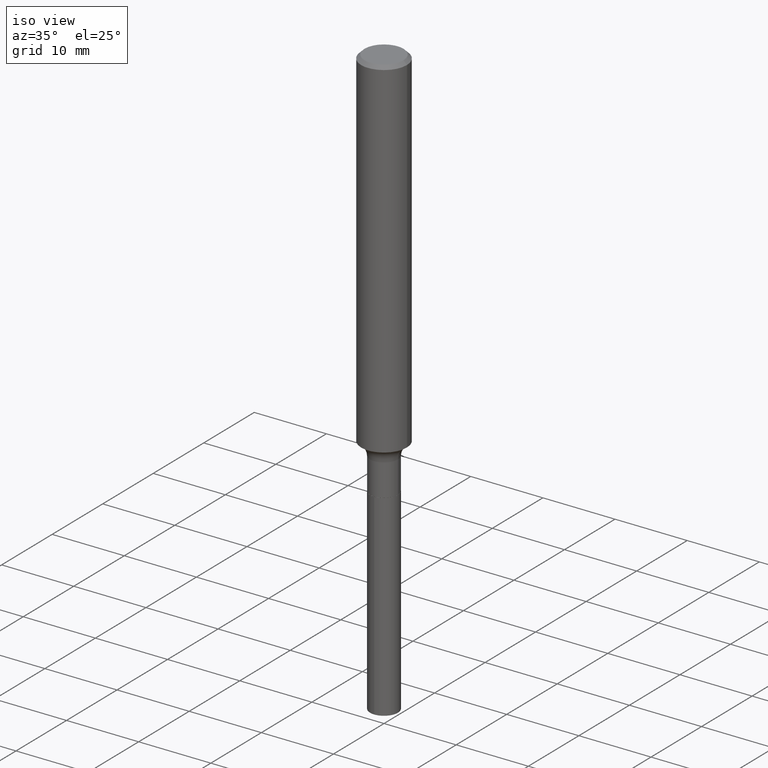
[diagram: clean part render]
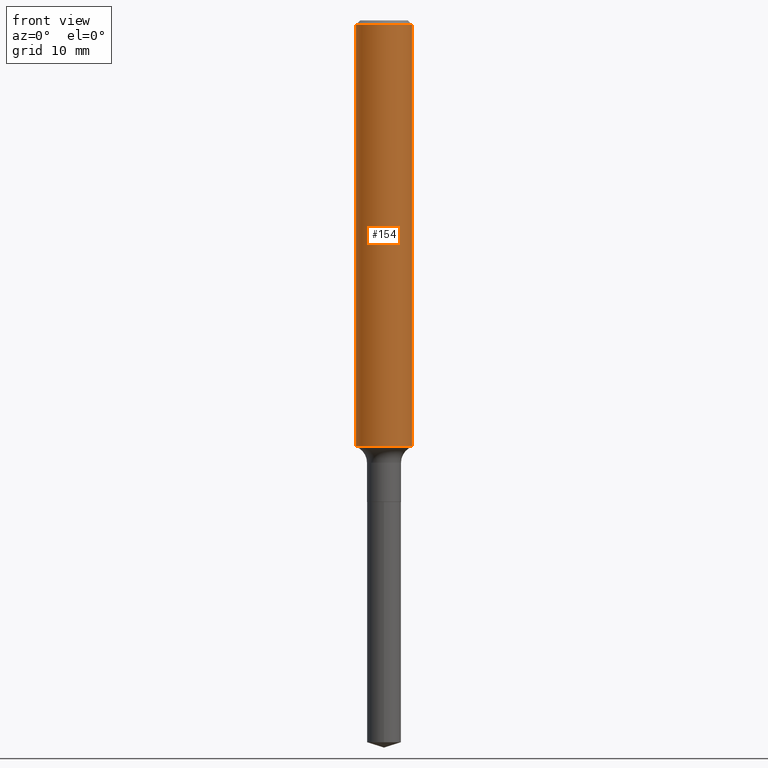
[diagram: tour spotlight — one face highlighted and labeled with its STEP entity id]
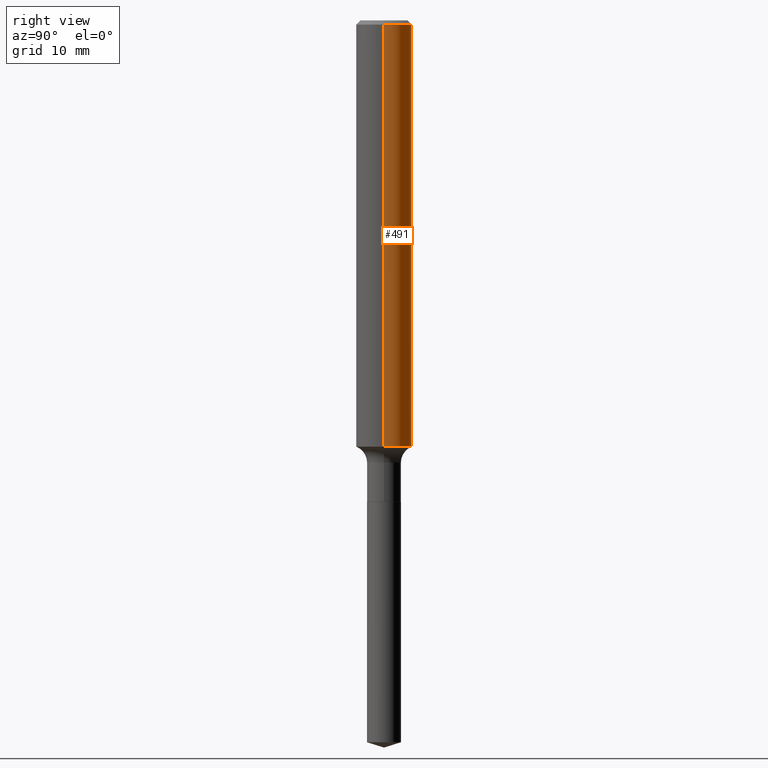
[diagram: tour spotlight — one face highlighted and labeled with its STEP entity id]
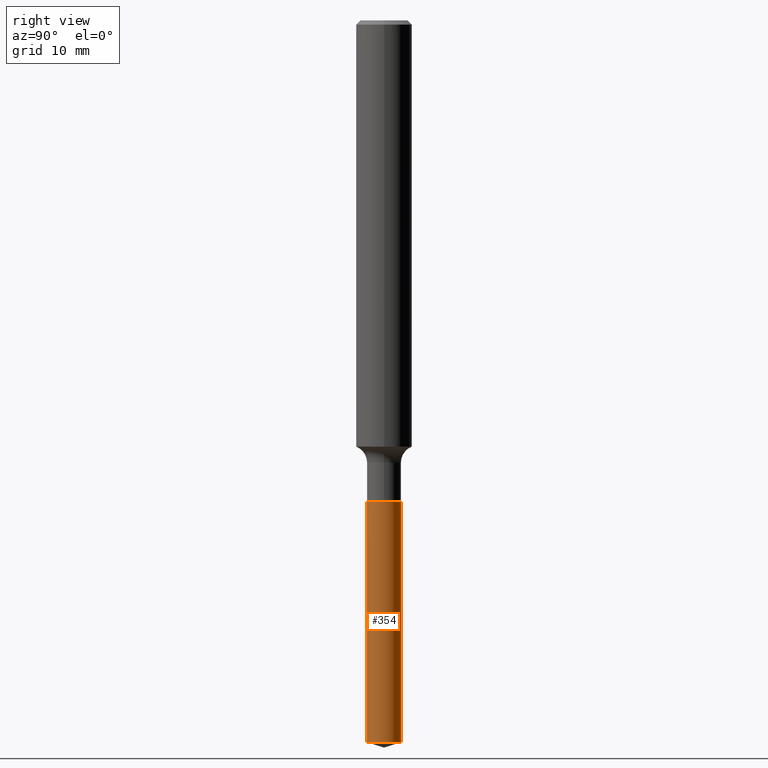
[diagram: tour spotlight — one face highlighted and labeled with its STEP entity id]
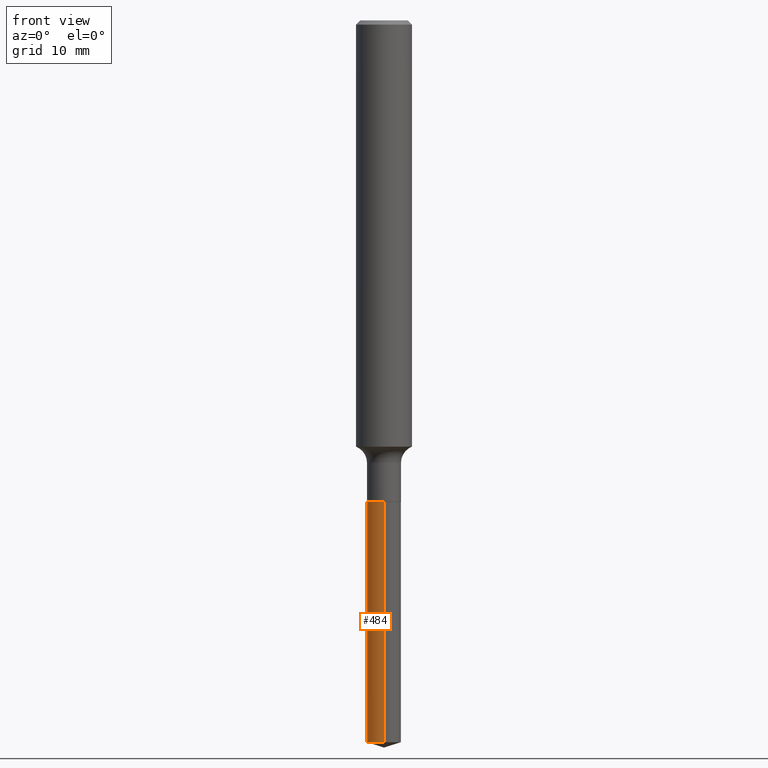
[diagram: tour spotlight — one face highlighted and labeled with its STEP entity id]
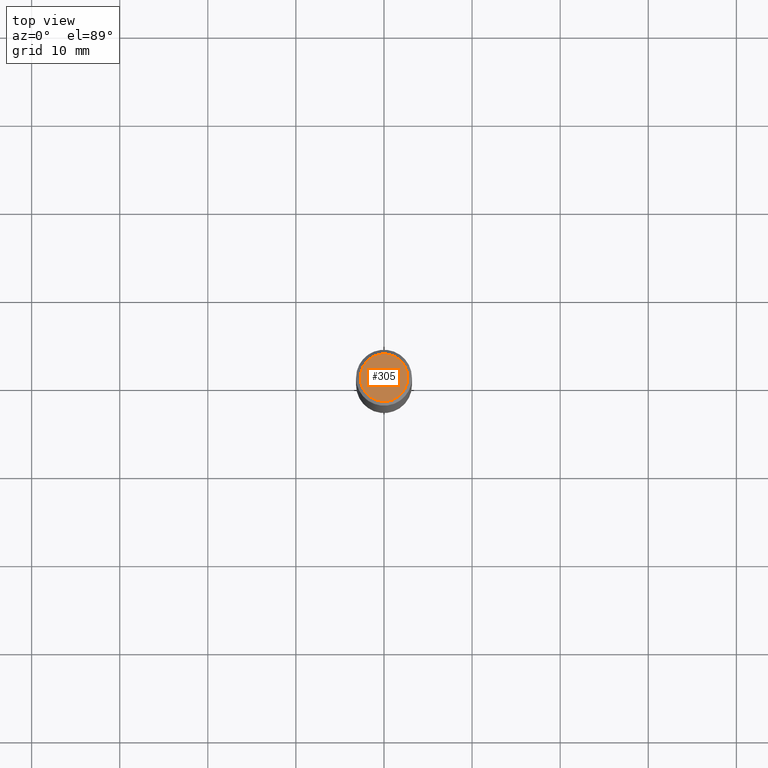
[diagram: tour spotlight — one face highlighted and labeled with its STEP entity id]
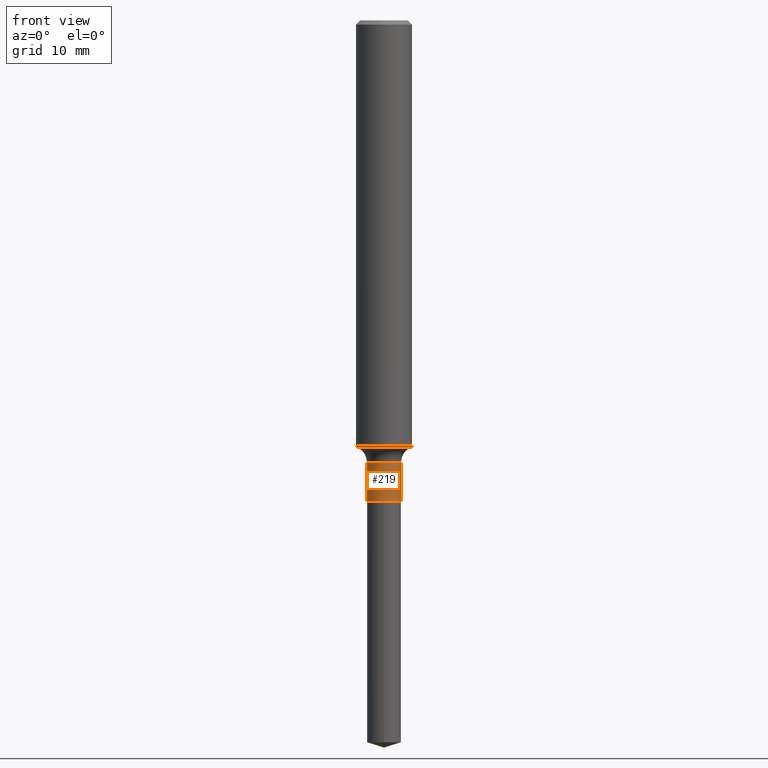
[diagram: tour spotlight — one face highlighted and labeled with its STEP entity id]
A machine part: a face-by-face anatomy tour. The part has 17 B-rep faces; the first image is the clean iso view, then the 6 largest visible faces are spotlighted one at a time (largest first), each with its STEP entity span.

Face 1 — front view, entity #154. In plain terms, the highlighted cylindrical surface (edge-blend (fillet) strip) has radius 3.175 mm, axis along (-0, 0, 1).
Definition (entity closure, byte-faithful):
#3 = CIRCLE ( 'NONE', #339, 0.1250000000000000000 ) ;
#5 = DIRECTION ( 'NONE',  ( 1.000000000000000000, -6.982962677686262766E-15, 0.000000000000000000 ) ) ;
#10 = CARTESIAN_POINT ( 'NONE',  ( 4.658108041399870066E-29, -6.650543756570650760E-15, -1.904791436970479923 ) ) ;
#41 = CARTESIAN_POINT ( 'NONE',  ( 0.1250000000000000000, -9.383356098140928781E-16, -0.01875000000000014155 ) ) ;
#61 = VECTOR ( 'NONE', #229, 39.37007874015748143 ) ;
#62 = ORIENTED_EDGE ( 'NONE', *, *, #147, .T. ) ;
#64 = CARTESIAN_POINT ( 'NONE',  ( -0.1250000000000000000, -2.469826096136851959E-15, -0.01875000000000014155 ) ) ;
#102 = ORIENTED_EDGE ( 'NONE', *, *, #443, .T. ) ;
#111 = EDGE_CURVE ( 'NONE', #129, #236, #3, .T. ) ;
#129 = VERTEX_POINT ( 'NONE', #64 ) ;
#131 = CARTESIAN_POINT ( 'NONE',  ( -0.1250000000000002498, -5.762365336870523950E-15, -1.904791436970479923 ) ) ;
#137 = DIRECTION ( 'NONE',  ( -2.445468806185136877E-29, 3.491481338843145188E-15, 1.000000000000000000 ) ) ;
#141 = DIRECTION ( 'NONE',  ( -2.445468806185136597E-29, 3.491481338843145583E-15, 1.000000000000000000 ) ) ;
#147 = EDGE_CURVE ( 'NONE', #249, #480, #245, .T. ) ;
#150 = CARTESIAN_POINT ( 'NONE',  ( -0.1250000000000001388, 8.881784197001262184E-16, -6.148668862818638533E-30 ) ) ;
#154 = ADVANCED_FACE ( 'NONE', ( #171 ), #430, .T. ) ;
#157 = DIRECTION ( 'NONE',  ( -2.445468806185136597E-29, 3.491481338843145583E-15, 1.000000000000000000 ) ) ;
#171 = FACE_OUTER_BOUND ( 'NONE', #367, .T. ) ;
#192 = DIRECTION ( 'NONE',  ( -2.445468806185136597E-29, 3.491481338843145583E-15, 1.000000000000000000 ) ) ;
#197 = VECTOR ( 'NONE', #137, 39.37007874015748143 ) ;
#211 = AXIS2_PLACEMENT_3D ( 'NONE', #10, #157, #5 ) ;
#229 = DIRECTION ( 'NONE',  ( -2.445468806185136877E-29, 3.491481338843145188E-15, 1.000000000000000000 ) ) ;
#235 = DIRECTION ( 'NONE',  ( 1.000000000000000000, -6.982962677686266711E-15, 4.876176775795935793E-29 ) ) ;
#236 = VERTEX_POINT ( 'NONE', #41 ) ;
#245 = CIRCLE ( 'NONE', #211, 0.1250000000000002776 ) ;
#249 = VERTEX_POINT ( 'NONE', #131 ) ;
#258 = CARTESIAN_POINT ( 'NONE',  ( 4.585254011597165626E-31, -6.546527510330947764E-17, -0.01875000000000014155 ) ) ;
#298 = LINE ( 'NONE', #371, #197 ) ;
#318 = CARTESIAN_POINT ( 'NONE',  ( 0.000000000000000000, 0.000000000000000000, 0.000000000000000000 ) ) ;
#329 = AXIS2_PLACEMENT_3D ( 'NONE', #318, #192, #235 ) ;
#339 = AXIS2_PLACEMENT_3D ( 'NONE', #258, #141, #365 ) ;
#344 = ORIENTED_EDGE ( 'NONE', *, *, #373, .F. ) ;
#365 = DIRECTION ( 'NONE',  ( 1.000000000000000000, -6.982962677686266711E-15, 0.000000000000000000 ) ) ;
#367 = EDGE_LOOP ( 'NONE', ( #344, #62, #102, #434 ) ) ;
#371 = CARTESIAN_POINT ( 'NONE',  ( 0.1250000000000001388, -8.728703347107843249E-16, 6.095220969744926748E-30 ) ) ;
#373 = EDGE_CURVE ( 'NONE', #249, #129, #486, .T. ) ;
#430 = CYLINDRICAL_SURFACE ( 'NONE', #329, 0.1250000000000001388 ) ;
#434 = ORIENTED_EDGE ( 'NONE', *, *, #111, .F. ) ;
#443 = EDGE_CURVE ( 'NONE', #480, #236, #298, .T. ) ;
#455 = CARTESIAN_POINT ( 'NONE',  ( 0.1250000000000002498, -7.523414091281434888E-15, -1.904791436970479923 ) ) ;
#480 = VERTEX_POINT ( 'NONE', #455 ) ;
#486 = LINE ( 'NONE', #150, #61 ) ;

Face 2 — right view, entity #491. In plain terms, the highlighted cylindrical surface (edge-blend (fillet) strip) has radius 3.175 mm, axis along (-0, 0, 1).
Definition (entity closure, byte-faithful):
#18 = AXIS2_PLACEMENT_3D ( 'NONE', #110, #335, #264 ) ;
#41 = CARTESIAN_POINT ( 'NONE',  ( 0.1250000000000000000, -9.383356098140928781E-16, -0.01875000000000014155 ) ) ;
#47 = CIRCLE ( 'NONE', #313, 0.1250000000000002776 ) ;
#61 = VECTOR ( 'NONE', #229, 39.37007874015748143 ) ;
#64 = CARTESIAN_POINT ( 'NONE',  ( -0.1250000000000000000, -2.469826096136851959E-15, -0.01875000000000014155 ) ) ;
#67 = ORIENTED_EDGE ( 'NONE', *, *, #373, .T. ) ;
#82 = AXIS2_PLACEMENT_3D ( 'NONE', #97, #172, #435 ) ;
#97 = CARTESIAN_POINT ( 'NONE',  ( 0.000000000000000000, 0.000000000000000000, 0.000000000000000000 ) ) ;
#110 = CARTESIAN_POINT ( 'NONE',  ( 4.585254011597165626E-31, -6.546527510330947764E-17, -0.01875000000000014155 ) ) ;
#115 = ORIENTED_EDGE ( 'NONE', *, *, #443, .F. ) ;
#129 = VERTEX_POINT ( 'NONE', #64 ) ;
#130 = CYLINDRICAL_SURFACE ( 'NONE', #82, 0.1250000000000001388 ) ;
#131 = CARTESIAN_POINT ( 'NONE',  ( -0.1250000000000002498, -5.762365336870523950E-15, -1.904791436970479923 ) ) ;
#137 = DIRECTION ( 'NONE',  ( -2.445468806185136877E-29, 3.491481338843145188E-15, 1.000000000000000000 ) ) ;
#150 = CARTESIAN_POINT ( 'NONE',  ( -0.1250000000000001388, 8.881784197001262184E-16, -6.148668862818638533E-30 ) ) ;
#161 = EDGE_LOOP ( 'NONE', ( #477, #67, #176, #115 ) ) ;
#172 = DIRECTION ( 'NONE',  ( -2.445468806185136597E-29, 3.491481338843145583E-15, 1.000000000000000000 ) ) ;
#176 = ORIENTED_EDGE ( 'NONE', *, *, #317, .F. ) ;
#197 = VECTOR ( 'NONE', #137, 39.37007874015748143 ) ;
#229 = DIRECTION ( 'NONE',  ( -2.445468806185136877E-29, 3.491481338843145188E-15, 1.000000000000000000 ) ) ;
#236 = VERTEX_POINT ( 'NONE', #41 ) ;
#242 = DIRECTION ( 'NONE',  ( -2.445468806185136597E-29, 3.491481338843145583E-15, 1.000000000000000000 ) ) ;
#244 = CIRCLE ( 'NONE', #18, 0.1250000000000000000 ) ;
#249 = VERTEX_POINT ( 'NONE', #131 ) ;
#250 = EDGE_CURVE ( 'NONE', #480, #249, #47, .T. ) ;
#264 = DIRECTION ( 'NONE',  ( 1.000000000000000000, -6.982962677686266711E-15, 0.000000000000000000 ) ) ;
#284 = CARTESIAN_POINT ( 'NONE',  ( 4.658108041399870066E-29, -6.650543756570650760E-15, -1.904791436970479923 ) ) ;
#298 = LINE ( 'NONE', #371, #197 ) ;
#312 = FACE_OUTER_BOUND ( 'NONE', #161, .T. ) ;
#313 = AXIS2_PLACEMENT_3D ( 'NONE', #284, #242, #324 ) ;
#317 = EDGE_CURVE ( 'NONE', #236, #129, #244, .T. ) ;
#324 = DIRECTION ( 'NONE',  ( 1.000000000000000000, -6.982962677686262766E-15, 0.000000000000000000 ) ) ;
#335 = DIRECTION ( 'NONE',  ( -2.445468806185136597E-29, 3.491481338843145583E-15, 1.000000000000000000 ) ) ;
#371 = CARTESIAN_POINT ( 'NONE',  ( 0.1250000000000001388, -8.728703347107843249E-16, 6.095220969744926748E-30 ) ) ;
#373 = EDGE_CURVE ( 'NONE', #249, #129, #486, .T. ) ;
#435 = DIRECTION ( 'NONE',  ( 1.000000000000000000, -6.982962677686266711E-15, 4.876176775795935793E-29 ) ) ;
#443 = EDGE_CURVE ( 'NONE', #480, #236, #298, .T. ) ;
#455 = CARTESIAN_POINT ( 'NONE',  ( 0.1250000000000002498, -7.523414091281434888E-15, -1.904791436970479923 ) ) ;
#477 = ORIENTED_EDGE ( 'NONE', *, *, #250, .T. ) ;
#480 = VERTEX_POINT ( 'NONE', #455 ) ;
#486 = LINE ( 'NONE', #150, #61 ) ;
#491 = ADVANCED_FACE ( 'NONE', ( #312 ), #130, .T. ) ;

Face 3 — right view, entity #354. In plain terms, the highlighted cylindrical surface (edge-blend (fillet) strip) has radius 1.9304 mm, axis along (-0, 0, 1).
Definition (entity closure, byte-faithful):
#15 = DIRECTION ( 'NONE',  ( -6.982962677686265922E-15, -1.000000000000000000, 0.000000000000000000 ) ) ;
#35 = CARTESIAN_POINT ( 'NONE',  ( 5.262648870910414216E-29, -7.513667841190447972E-15, -2.151999999999999691 ) ) ;
#36 = AXIS2_PLACEMENT_3D ( 'NONE', #35, #266, #182 ) ;
#37 = EDGE_CURVE ( 'NONE', #478, #126, #112, .T. ) ;
#72 = CARTESIAN_POINT ( 'NONE',  ( -5.307051635040773287E-16, -0.07600000000001126688, -3.226037292045197180 ) ) ;
#94 = VERTEX_POINT ( 'NONE', #72 ) ;
#103 = CARTESIAN_POINT ( 'NONE',  ( 5.400124791777550139E-16, 0.07599999999998874323, -3.226037292045197180 ) ) ;
#112 = CIRCLE ( 'NONE', #36, 0.07599999999999999811 ) ;
#119 = DIRECTION ( 'NONE',  ( -6.982962677686265922E-15, -1.000000000000000000, 3.594536833768767206E-15 ) ) ;
#125 = EDGE_CURVE ( 'NONE', #94, #468, #316, .T. ) ;
#126 = VERTEX_POINT ( 'NONE', #290 ) ;
#165 = EDGE_LOOP ( 'NONE', ( #300, #223, #431, #389 ) ) ;
#182 = DIRECTION ( 'NONE',  ( -6.982962677686265922E-15, -1.000000000000000000, 3.594536833768767206E-15 ) ) ;
#188 = CYLINDRICAL_SURFACE ( 'NONE', #457, 0.07599999999999999811 ) ;
#223 = ORIENTED_EDGE ( 'NONE', *, *, #409, .T. ) ;
#266 = DIRECTION ( 'NONE',  ( -2.445485975129154675E-29, 3.491456751938116004E-15, 1.000000000000000000 ) ) ;
#290 = CARTESIAN_POINT ( 'NONE',  ( 5.400124791777551125E-16, 0.07599999999999249023, -2.152000000000000135 ) ) ;
#291 = DIRECTION ( 'NONE',  ( -2.445485975129154675E-29, 3.491456751938116004E-15, 1.000000000000000000 ) ) ;
#293 = CARTESIAN_POINT ( 'NONE',  ( 7.889192005372638676E-29, -1.126362259633498391E-14, -3.226037292045197180 ) ) ;
#294 = CARTESIAN_POINT ( 'NONE',  ( -5.307051635041035583E-16, -0.07600000000000750600, -2.151999999999999691 ) ) ;
#300 = ORIENTED_EDGE ( 'NONE', *, *, #125, .T. ) ;
#309 = VECTOR ( 'NONE', #291, 39.37007874015748143 ) ;
#311 = LINE ( 'NONE', #454, #348 ) ;
#316 = CIRCLE ( 'NONE', #414, 0.07599999999999999811 ) ;
#348 = VECTOR ( 'NONE', #381, 39.37007874015748143 ) ;
#354 = ADVANCED_FACE ( 'NONE', ( #448 ), #188, .T. ) ;
#381 = DIRECTION ( 'NONE',  ( -2.445485975129154675E-29, 3.491456751938116004E-15, 1.000000000000000000 ) ) ;
#384 = CARTESIAN_POINT ( 'NONE',  ( 5.262648870910414216E-29, -7.513667841190447972E-15, -2.151999999999999691 ) ) ;
#389 = ORIENTED_EDGE ( 'NONE', *, *, #417, .F. ) ;
#402 = DIRECTION ( 'NONE',  ( -2.445485975129154675E-29, 3.491456751938116004E-15, 1.000000000000000000 ) ) ;
#409 = EDGE_CURVE ( 'NONE', #468, #126, #311, .T. ) ;
#414 = AXIS2_PLACEMENT_3D ( 'NONE', #293, #402, #15 ) ;
#417 = EDGE_CURVE ( 'NONE', #94, #478, #483, .T. ) ;
#431 = ORIENTED_EDGE ( 'NONE', *, *, #37, .F. ) ;
#448 = FACE_OUTER_BOUND ( 'NONE', #165, .T. ) ;
#453 = DIRECTION ( 'NONE',  ( -2.445485975129154675E-29, 3.491456751938116004E-15, 1.000000000000000000 ) ) ;
#454 = CARTESIAN_POINT ( 'NONE',  ( 5.400124791777286857E-16, 0.07599999999999249023, -2.152000000000000135 ) ) ;
#457 = AXIS2_PLACEMENT_3D ( 'NONE', #384, #453, #119 ) ;
#462 = CARTESIAN_POINT ( 'NONE',  ( -5.307051635041035583E-16, -0.07600000000000750600, -2.151999999999999691 ) ) ;
#468 = VERTEX_POINT ( 'NONE', #103 ) ;
#478 = VERTEX_POINT ( 'NONE', #294 ) ;
#483 = LINE ( 'NONE', #462, #309 ) ;

Face 4 — front view, entity #484. In plain terms, the highlighted cylindrical surface (edge-blend (fillet) strip) has radius 1.9304 mm, axis along (-0, 0, 1).
Definition (entity closure, byte-faithful):
#52 = CARTESIAN_POINT ( 'NONE',  ( 5.262648870910414216E-29, -7.513667841190447972E-15, -2.151999999999999691 ) ) ;
#58 = DIRECTION ( 'NONE',  ( -6.982962677686265922E-15, -1.000000000000000000, 0.000000000000000000 ) ) ;
#71 = CIRCLE ( 'NONE', #170, 0.07599999999999999811 ) ;
#72 = CARTESIAN_POINT ( 'NONE',  ( -5.307051635040773287E-16, -0.07600000000001126688, -3.226037292045197180 ) ) ;
#94 = VERTEX_POINT ( 'NONE', #72 ) ;
#95 = FACE_OUTER_BOUND ( 'NONE', #359, .T. ) ;
#96 = ORIENTED_EDGE ( 'NONE', *, *, #417, .T. ) ;
#103 = CARTESIAN_POINT ( 'NONE',  ( 5.400124791777550139E-16, 0.07599999999998874323, -3.226037292045197180 ) ) ;
#126 = VERTEX_POINT ( 'NONE', #290 ) ;
#163 = DIRECTION ( 'NONE',  ( -2.445485975129154675E-29, 3.491456751938116004E-15, 1.000000000000000000 ) ) ;
#168 = CIRCLE ( 'NONE', #346, 0.07599999999999999811 ) ;
#170 = AXIS2_PLACEMENT_3D ( 'NONE', #357, #426, #467 ) ;
#207 = ORIENTED_EDGE ( 'NONE', *, *, #409, .F. ) ;
#231 = AXIS2_PLACEMENT_3D ( 'NONE', #52, #163, #257 ) ;
#241 = EDGE_CURVE ( 'NONE', #126, #478, #71, .T. ) ;
#257 = DIRECTION ( 'NONE',  ( -6.982962677686265922E-15, -1.000000000000000000, 3.594536833768767206E-15 ) ) ;
#273 = EDGE_CURVE ( 'NONE', #468, #94, #168, .T. ) ;
#282 = ORIENTED_EDGE ( 'NONE', *, *, #273, .T. ) ;
#290 = CARTESIAN_POINT ( 'NONE',  ( 5.400124791777551125E-16, 0.07599999999999249023, -2.152000000000000135 ) ) ;
#291 = DIRECTION ( 'NONE',  ( -2.445485975129154675E-29, 3.491456751938116004E-15, 1.000000000000000000 ) ) ;
#294 = CARTESIAN_POINT ( 'NONE',  ( -5.307051635041035583E-16, -0.07600000000000750600, -2.151999999999999691 ) ) ;
#309 = VECTOR ( 'NONE', #291, 39.37007874015748143 ) ;
#311 = LINE ( 'NONE', #454, #348 ) ;
#315 = ORIENTED_EDGE ( 'NONE', *, *, #241, .F. ) ;
#322 = CYLINDRICAL_SURFACE ( 'NONE', #231, 0.07599999999999999811 ) ;
#346 = AXIS2_PLACEMENT_3D ( 'NONE', #398, #363, #58 ) ;
#348 = VECTOR ( 'NONE', #381, 39.37007874015748143 ) ;
#357 = CARTESIAN_POINT ( 'NONE',  ( 5.262648870910414216E-29, -7.513667841190447972E-15, -2.151999999999999691 ) ) ;
#359 = EDGE_LOOP ( 'NONE', ( #207, #282, #96, #315 ) ) ;
#363 = DIRECTION ( 'NONE',  ( -2.445485975129154675E-29, 3.491456751938116004E-15, 1.000000000000000000 ) ) ;
#381 = DIRECTION ( 'NONE',  ( -2.445485975129154675E-29, 3.491456751938116004E-15, 1.000000000000000000 ) ) ;
#398 = CARTESIAN_POINT ( 'NONE',  ( 7.889192005372638676E-29, -1.126362259633498391E-14, -3.226037292045197180 ) ) ;
#409 = EDGE_CURVE ( 'NONE', #468, #126, #311, .T. ) ;
#417 = EDGE_CURVE ( 'NONE', #94, #478, #483, .T. ) ;
#426 = DIRECTION ( 'NONE',  ( -2.445485975129154675E-29, 3.491456751938116004E-15, 1.000000000000000000 ) ) ;
#454 = CARTESIAN_POINT ( 'NONE',  ( 5.400124791777286857E-16, 0.07599999999999249023, -2.152000000000000135 ) ) ;
#462 = CARTESIAN_POINT ( 'NONE',  ( -5.307051635041035583E-16, -0.07600000000000750600, -2.151999999999999691 ) ) ;
#467 = DIRECTION ( 'NONE',  ( -6.982962677686265922E-15, -1.000000000000000000, 3.594536833768767206E-15 ) ) ;
#468 = VERTEX_POINT ( 'NONE', #103 ) ;
#478 = VERTEX_POINT ( 'NONE', #294 ) ;
#483 = LINE ( 'NONE', #462, #309 ) ;
#484 = ADVANCED_FACE ( 'NONE', ( #95 ), #322, .T. ) ;

Face 5 — top view, entity #305. In plain terms, the highlighted planar face has unit normal (0, -0, -1).
Definition (entity closure, byte-faithful):
#79 = AXIS2_PLACEMENT_3D ( 'NONE', #88, #86, #358 ) ;
#83 = CIRCLE ( 'NONE', #263, 0.1062499999999999972 ) ;
#84 = VERTEX_POINT ( 'NONE', #342 ) ;
#86 = DIRECTION ( 'NONE',  ( -2.445468806185136597E-29, 3.491481338843145583E-15, 1.000000000000000000 ) ) ;
#88 = CARTESIAN_POINT ( 'NONE',  ( -1.591006383764330940E-46, 2.271535455632768948E-32, 6.505936120470318766E-18 ) ) ;
#118 = CIRCLE ( 'NONE', #79, 0.1062499999999999972 ) ;
#139 = VERTEX_POINT ( 'NONE', #214 ) ;
#175 = CARTESIAN_POINT ( 'NONE',  ( -1.591006383764330940E-46, 2.271535455632768948E-32, 6.505936120470318766E-18 ) ) ;
#184 = AXIS2_PLACEMENT_3D ( 'NONE', #447, #444, #260 ) ;
#193 = ORIENTED_EDGE ( 'NONE', *, *, #308, .T. ) ;
#210 = EDGE_CURVE ( 'NONE', #139, #84, #118, .T. ) ;
#214 = CARTESIAN_POINT ( 'NONE',  ( 0.1062499999999999972, -8.259777185439879685E-16, 6.505936120475800733E-18 ) ) ;
#217 = FACE_OUTER_BOUND ( 'NONE', #239, .T. ) ;
#239 = EDGE_LOOP ( 'NONE', ( #193, #460 ) ) ;
#260 = DIRECTION ( 'NONE',  ( -1.000000000000000000, 6.982962677686265922E-15, -4.876176775795935793E-29 ) ) ;
#263 = AXIS2_PLACEMENT_3D ( 'NONE', #175, #377, #340 ) ;
#305 = ADVANCED_FACE ( 'NONE', ( #217 ), #343, .F. ) ;
#308 = EDGE_CURVE ( 'NONE', #84, #139, #83, .T. ) ;
#340 = DIRECTION ( 'NONE',  ( 1.000000000000000000, -6.982962677686266711E-15, 4.875930095424100059E-29 ) ) ;
#342 = CARTESIAN_POINT ( 'NONE',  ( -0.1062499999999999972, 7.746724220558198188E-16, 6.505936120465015526E-18 ) ) ;
#343 = PLANE ( 'NONE',  #184 ) ;
#358 = DIRECTION ( 'NONE',  ( 1.000000000000000000, -6.982962677686266711E-15, 4.875930095424100059E-29 ) ) ;
#377 = DIRECTION ( 'NONE',  ( -2.445468806185136597E-29, 3.491481338843145583E-15, 1.000000000000000000 ) ) ;
#444 = DIRECTION ( 'NONE',  ( 2.438088387897960049E-29, -3.491481338843145188E-15, -1.000000000000000000 ) ) ;
#447 = CARTESIAN_POINT ( 'NONE',  ( -7.955031918821654702E-47, 1.135767727816384474E-32, 3.252968060235159383E-18 ) ) ;
#460 = ORIENTED_EDGE ( 'NONE', *, *, #210, .T. ) ;

Face 6 — front view, entity #219. In plain terms, the highlighted cylindrical surface (edge-blend (fillet) strip) has radius 1.9304 mm, axis along (-0, 0, 1).
Definition (entity closure, byte-faithful):
#7 = CARTESIAN_POINT ( 'NONE',  ( -0.07600000000000001199, -6.667627022663171914E-15, -2.151499999999999968 ) ) ;
#13 = EDGE_LOOP ( 'NONE', ( #288, #345, #280, #70 ) ) ;
#17 = EDGE_CURVE ( 'NONE', #256, #436, #449, .T. ) ;
#22 = EDGE_CURVE ( 'NONE', #256, #107, #464, .T. ) ;
#29 = DIRECTION ( 'NONE',  ( -2.445468806185136597E-29, 3.491481338843145583E-15, 1.000000000000000000 ) ) ;
#33 = EDGE_CURVE ( 'NONE', #436, #406, #439, .T. ) ;
#44 = CARTESIAN_POINT ( 'NONE',  ( 0.000000000000000000, 0.000000000000000000, 0.000000000000000000 ) ) ;
#48 = VECTOR ( 'NONE', #459, 39.37007874015748143 ) ;
#70 = ORIENTED_EDGE ( 'NONE', *, *, #33, .F. ) ;
#76 = CARTESIAN_POINT ( 'NONE',  ( -0.07599999999999998423, 5.400124791776760292E-16, -3.738390668593727996E-30 ) ) ;
#107 = VERTEX_POINT ( 'NONE', #299 ) ;
#123 = CYLINDRICAL_SURFACE ( 'NONE', #178, 0.07599999999999998423 ) ;
#136 = EDGE_CURVE ( 'NONE', #107, #406, #362, .T. ) ;
#153 = CARTESIAN_POINT ( 'NONE',  ( 0.07599999999999998423, -7.434062066664824253E-15, -1.977200000000000069 ) ) ;
#178 = AXIS2_PLACEMENT_3D ( 'NONE', #44, #330, #396 ) ;
#183 = DIRECTION ( 'NONE',  ( -2.445468806185136597E-29, 3.491481338843145583E-15, 1.000000000000000000 ) ) ;
#185 = AXIS2_PLACEMENT_3D ( 'NONE', #411, #183, #412 ) ;
#190 = AXIS2_PLACEMENT_3D ( 'NONE', #226, #29, #382 ) ;
#219 = ADVANCED_FACE ( 'NONE', ( #366 ), #123, .T. ) ;
#226 = CARTESIAN_POINT ( 'NONE',  ( 4.835180923589252545E-29, -6.903356903160668236E-15, -1.977200000000000069 ) ) ;
#256 = VERTEX_POINT ( 'NONE', #7 ) ;
#267 = DIRECTION ( 'NONE',  ( -2.445468806185136877E-29, 3.491481338843145188E-15, 1.000000000000000000 ) ) ;
#280 = ORIENTED_EDGE ( 'NONE', *, *, #136, .T. ) ;
#288 = ORIENTED_EDGE ( 'NONE', *, *, #17, .F. ) ;
#299 = CARTESIAN_POINT ( 'NONE',  ( 0.07599999999999999811, -8.042627264025184852E-15, -2.151499999999999968 ) ) ;
#304 = VECTOR ( 'NONE', #267, 39.37007874015748143 ) ;
#330 = DIRECTION ( 'NONE',  ( -2.445468806185136597E-29, 3.491481338843145583E-15, 1.000000000000000000 ) ) ;
#345 = ORIENTED_EDGE ( 'NONE', *, *, #22, .T. ) ;
#362 = LINE ( 'NONE', #424, #48 ) ;
#366 = FACE_OUTER_BOUND ( 'NONE', #13, .T. ) ;
#382 = DIRECTION ( 'NONE',  ( 1.000000000000000000, -6.982962677686269866E-15, 0.000000000000000000 ) ) ;
#396 = DIRECTION ( 'NONE',  ( 1.000000000000000000, -6.982962677686267499E-15, 4.876176775795936353E-29 ) ) ;
#406 = VERTEX_POINT ( 'NONE', #153 ) ;
#411 = CARTESIAN_POINT ( 'NONE',  ( 5.261426136507321415E-29, -7.511922100521028835E-15, -2.151499999999999968 ) ) ;
#412 = DIRECTION ( 'NONE',  ( 1.000000000000000000, -6.982962677686269077E-15, 0.000000000000000000 ) ) ;
#418 = CARTESIAN_POINT ( 'NONE',  ( -0.07599999999999998423, -6.667627022663171914E-15, -1.977200000000000069 ) ) ;
#424 = CARTESIAN_POINT ( 'NONE',  ( 0.07599999999999998423, -5.307051635041562148E-16, 3.705894349604910950E-30 ) ) ;
#436 = VERTEX_POINT ( 'NONE', #418 ) ;
#439 = CIRCLE ( 'NONE', #190, 0.07599999999999998423 ) ;
#449 = LINE ( 'NONE', #76, #304 ) ;
#459 = DIRECTION ( 'NONE',  ( -2.445468806185136877E-29, 3.491481338843145188E-15, 1.000000000000000000 ) ) ;
#464 = CIRCLE ( 'NONE', #185, 0.07599999999999999811 ) ;